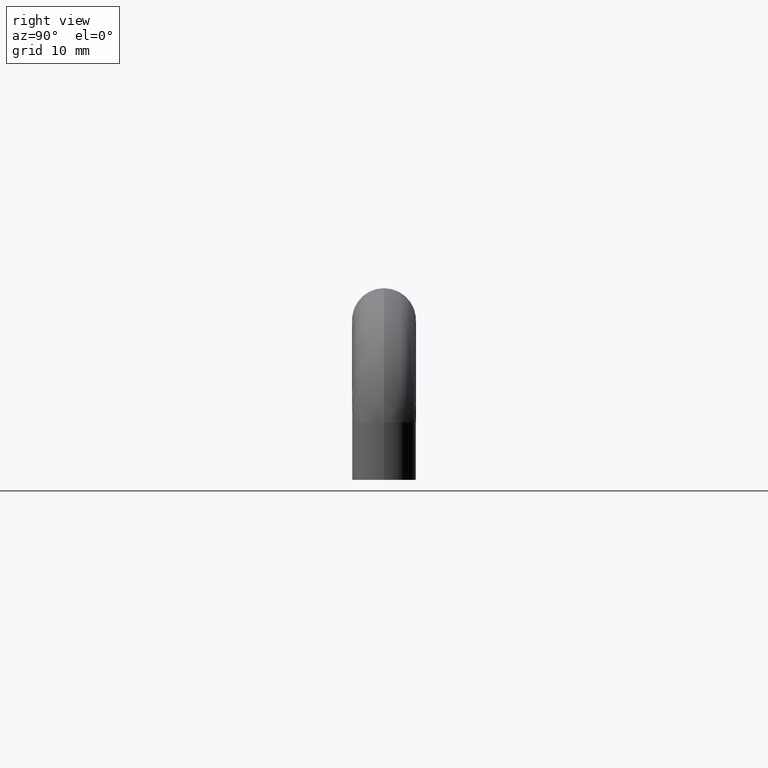
[diagram: clean part render]
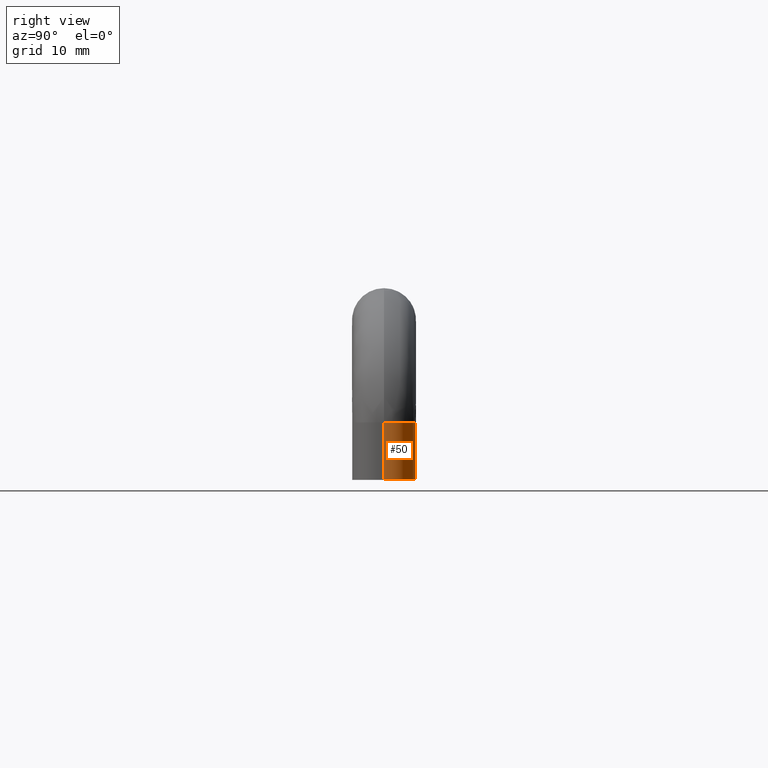
[diagram: same view with one face highlighted and labeled with its STEP entity id]
A machine part, right view. The second image highlights one B-rep face of the part: STEP entity #50.
In plain terms, the highlighted cylindrical surface (edge-blend (fillet) strip) has radius 5 mm, axis along (-0, 0, -1).
Its self-contained STEP definition (entity closure, byte-faithful):
#50=ADVANCED_FACE('',(#161),#160,.T.);
#160=CYLINDRICAL_SURFACE('',#399,5.00000000000E+00);
#161=FACE_OUTER_BOUND('',#400,.T.);
#396=CARTESIAN_POINT('',(5.00000000000E+01,-9.33367966249E-11,-1.55000000000E+01));
#397=DIRECTION('',(-0.00000000000E+00,0.00000000000E+00,-1.00000000000E+00));
#398=DIRECTION('',(-1.00000000000E+00,-4.44089209850E-16,0.00000000000E+00));
#399=AXIS2_PLACEMENT_3D('',#396,#397,#398);
#400=EDGE_LOOP('',(#472,#473,#474,#475));
#472=ORIENTED_EDGE('',*,*,#504,.F.);
#473=ORIENTED_EDGE('',*,*,#530,.F.);
#474=ORIENTED_EDGE('',*,*,#526,.F.);
#475=ORIENTED_EDGE('',*,*,#531,.T.);
#504=EDGE_CURVE('',#538,#539,#540,.T.);
#526=EDGE_CURVE('',#688,#689,#690,.T.);
#530=EDGE_CURVE('',#689,#538,#714,.T.);
#531=EDGE_CURVE('',#688,#539,#720,.T.);
#538=VERTEX_POINT('',#762);
#539=VERTEX_POINT('',#763);
#540=CIRCLE('',#767,5.00000000000E+00);
#688=VERTEX_POINT('',#866);
#689=VERTEX_POINT('',#867);
#690=CIRCLE('',#871,5.00000000000E+00);
#714=(BOUNDED_CURVE() B_SPLINE_CURVE(1,(#888,#889),.UNSPECIFIED.,.F.,.F.) B_SPLINE_CURVE_WITH_KNOTS((2,2),(8.33333343261E-02,9.16666664274E-01),.UNSPECIFIED.) CURVE() GEOMETRIC_REPRESENTATION_ITEM() RATIONAL_B_SPLINE_CURVE((1.00000000000E+00,1.00000000000E+00)) REPRESENTATION_ITEM('') );
#720=(BOUNDED_CURVE() B_SPLINE_CURVE(1,(#890,#891),.UNSPECIFIED.,.F.,.F.) B_SPLINE_CURVE_WITH_KNOTS((2,2),(8.33333333333E-02,9.16666666667E-01),.UNSPECIFIED.) CURVE() GEOMETRIC_REPRESENTATION_ITEM() RATIONAL_B_SPLINE_CURVE((7.50000000000E-01,7.50000000000E-01)) REPRESENTATION_ITEM('') );
#762=CARTESIAN_POINT('',(4.50000000000E+01,-9.33374089281E-11,-2.00000000000E+01));
#763=CARTESIAN_POINT('',(5.50000000000E+01,-9.33371898289E-11,-2.00000000000E+01));
#764=CARTESIAN_POINT('',(5.00000000000E+01,-9.33367966249E-11,-2.00000000000E+01));
#765=DIRECTION('',(0.00000000000E+00,0.00000000000E+00,-1.00000000000E+00));
#766=DIRECTION('',(-1.00000000000E+00,-0.00000000000E+00,-0.00000000000E+00));
#767=AXIS2_PLACEMENT_3D('',#764,#765,#766);
#866=CARTESIAN_POINT('',(5.50000000000E+01,-9.33376078430E-11,-1.10000000000E+01));
#867=CARTESIAN_POINT('',(4.50000000000E+01,-9.33368937694E-11,-1.10000000000E+01));
#868=CARTESIAN_POINT('',(5.00000000000E+01,-9.33367966249E-11,-1.10000000000E+01));
#869=DIRECTION('',(0.00000000000E+00,0.00000000000E+00,1.00000000000E+00));
#870=DIRECTION('',(1.00000000000E+00,-3.97829799999E-17,-0.00000000000E+00));
#871=AXIS2_PLACEMENT_3D('',#868,#869,#870);
#888=CARTESIAN_POINT('',(4.50000000000E+01,-9.33390170709E-11,-1.10000000107E+01));
#889=CARTESIAN_POINT('',(4.50000000000E+01,-9.33390170709E-11,-1.99999999742E+01));
#890=CARTESIAN_POINT('',(5.50000000000E+01,-9.33351174126E-11,-1.10000000000E+01));
#891=CARTESIAN_POINT('',(5.50000000000E+01,-9.33351174126E-11,-2.00000000000E+01));